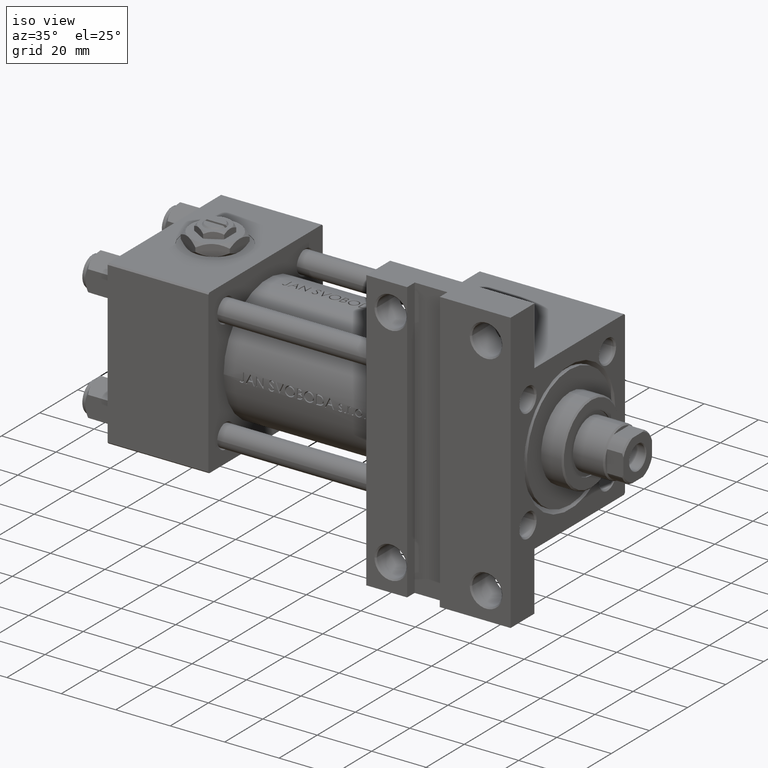
[diagram: clean part render]
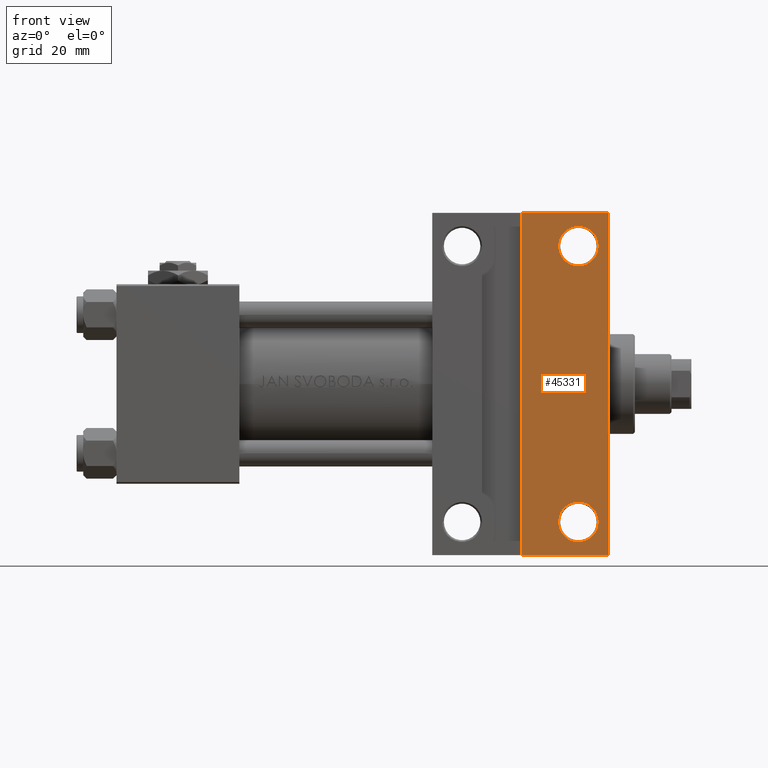
[diagram: tour spotlight — one face highlighted and labeled with its STEP entity id]
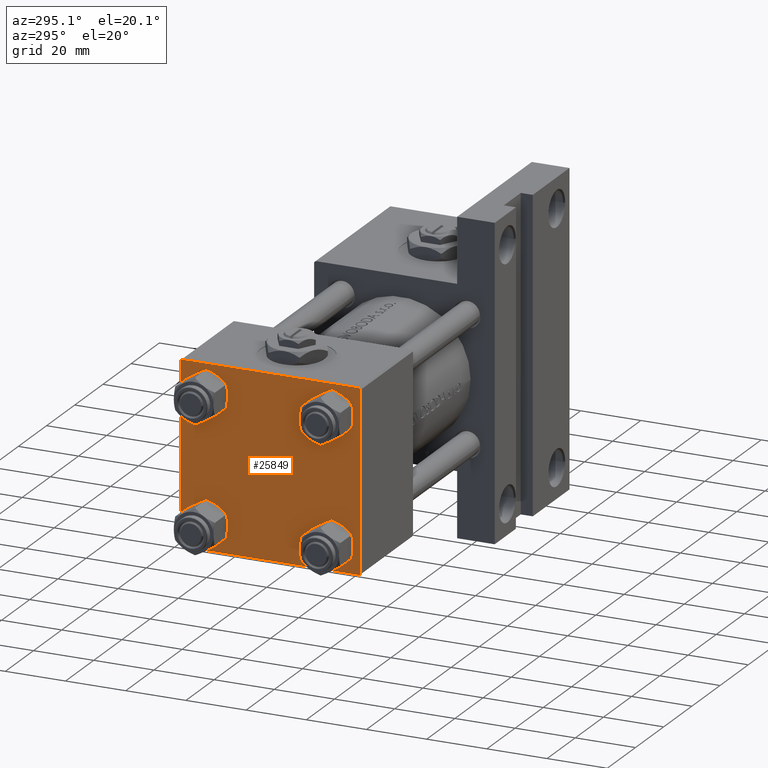
[diagram: tour spotlight — one face highlighted and labeled with its STEP entity id]
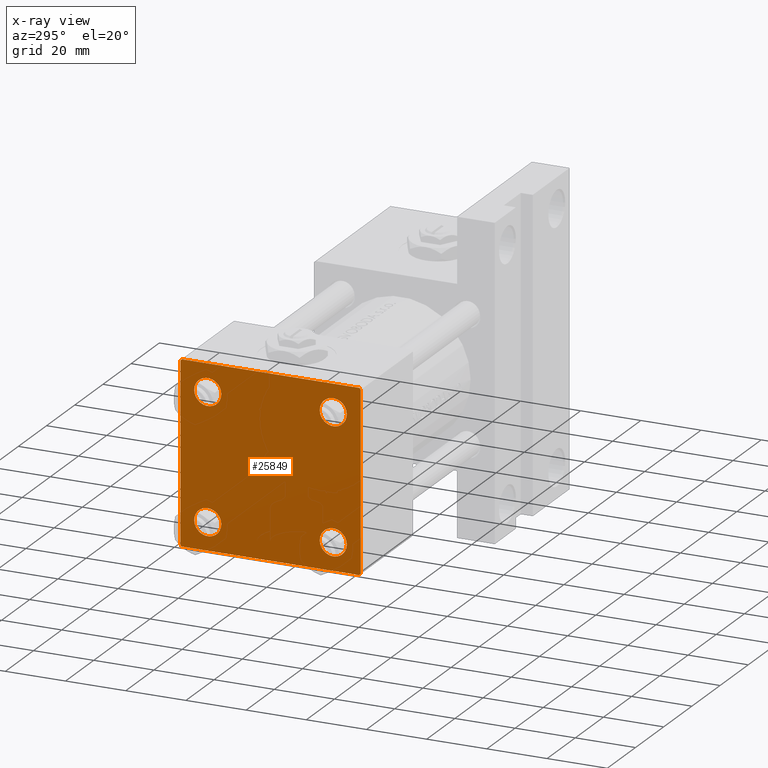
[diagram: x-ray of the same camera — body ghosted, this tour face saturated]
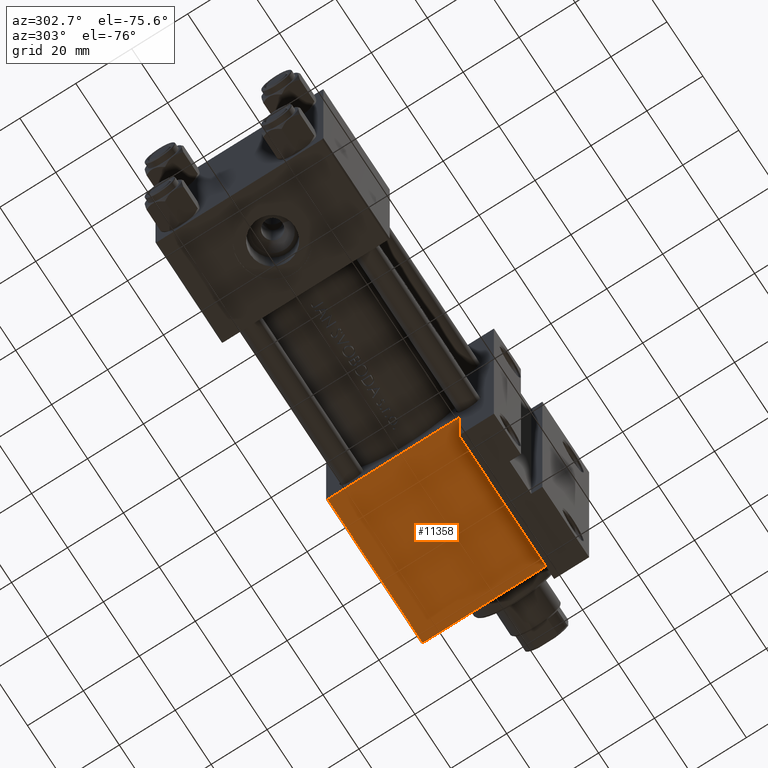
[diagram: tour spotlight — one face highlighted and labeled with its STEP entity id]
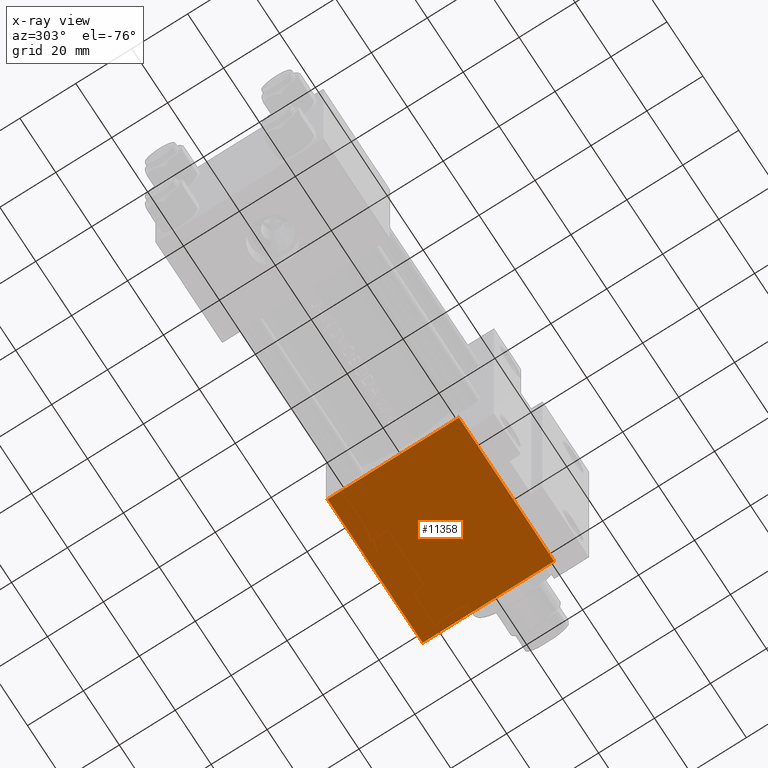
[diagram: x-ray of the same camera — body ghosted, this tour face saturated]
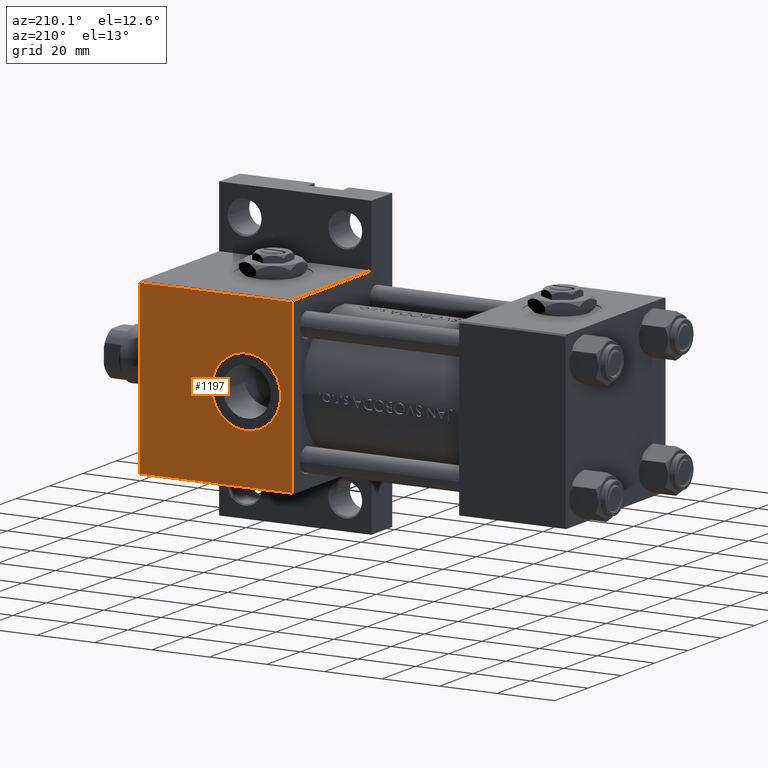
[diagram: tour spotlight — one face highlighted and labeled with its STEP entity id]
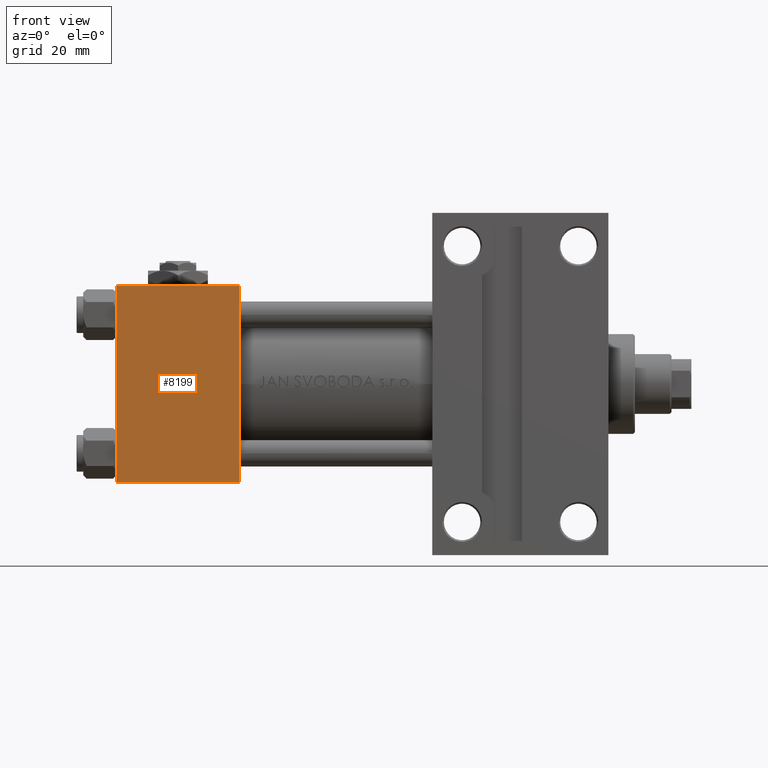
[diagram: tour spotlight — one face highlighted and labeled with its STEP entity id]
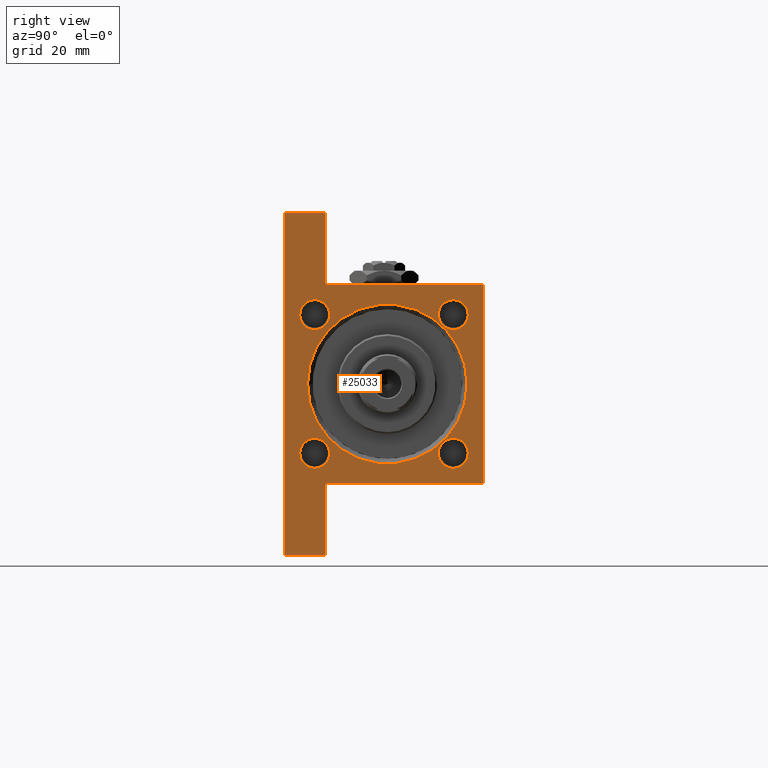
[diagram: tour spotlight — one face highlighted and labeled with its STEP entity id]
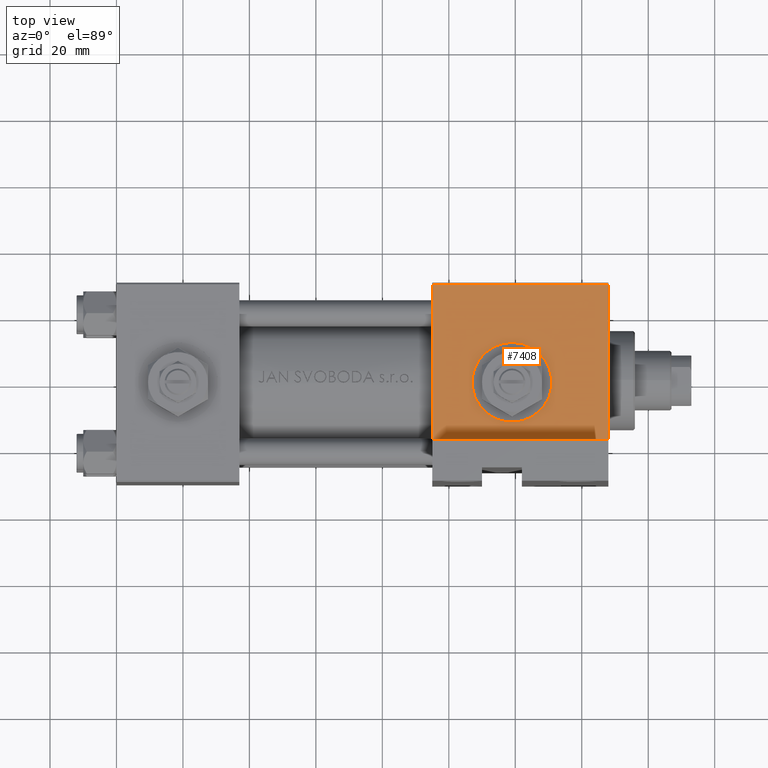
[diagram: tour spotlight — one face highlighted and labeled with its STEP entity id]
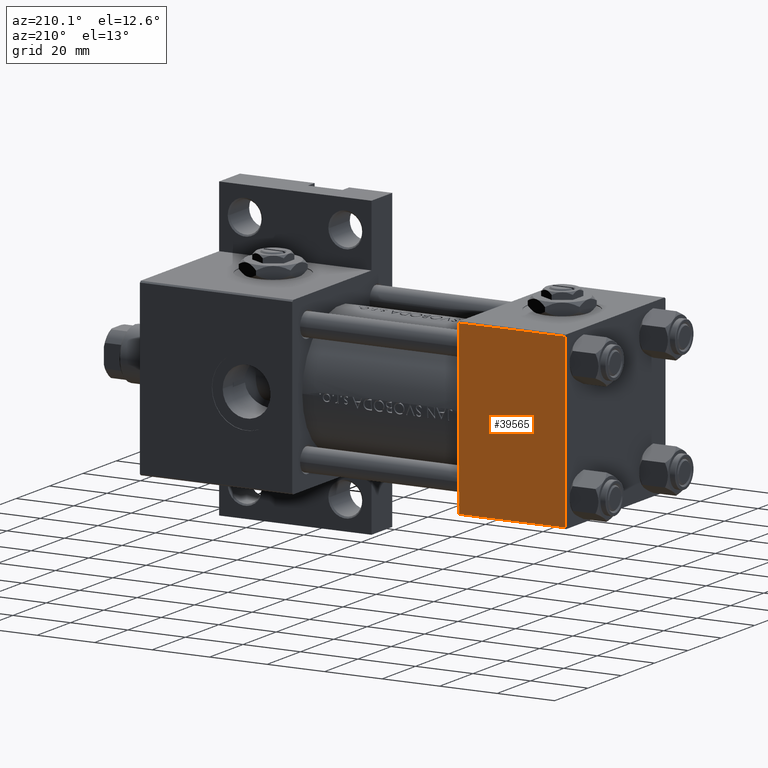
[diagram: tour spotlight — one face highlighted and labeled with its STEP entity id]
A machine part: a face-by-face anatomy tour. The part has 1215 B-rep faces; the first image is the clean iso view, then the 8 largest visible faces are spotlighted one at a time (largest first), each with its STEP entity span.

Face 1 — front view, entity #45331. In plain terms, the highlighted planar face has unit normal (0, -1, -0).
Definition (entity closure, byte-faithful):
#101 = EDGE_CURVE ( 'NONE', #16081, #48261, #44319, .T. ) ;
#175 = PLANE ( 'NONE',  #48929 ) ;
#1473 = CIRCLE ( 'NONE', #9636, 5.999499999999962974 ) ;
#1639 = EDGE_CURVE ( 'NONE', #15262, #25419, #1473, .T. ) ;
#2702 = DIRECTION ( 'NONE',  ( -0.000000000000000000, -1.156482317317871478E-16, 1.000000000000000000 ) ) ;
#4068 = CIRCLE ( 'NONE', #24543, 5.999499999999962974 ) ;
#6269 = LINE ( 'NONE', #18557, #32371 ) ;
#6478 = EDGE_LOOP ( 'NONE', ( #6997, #35443 ) ) ;
#6997 = ORIENTED_EDGE ( 'NONE', *, *, #44349, .T. ) ;
#8231 = ORIENTED_EDGE ( 'NONE', *, *, #101, .F. ) ;
#8592 = CARTESIAN_POINT ( 'NONE',  ( 133.0004999999999598, -41.50000000000000000, -30.00000000000000000 ) ) ;
#8620 = DIRECTION ( 'NONE',  ( -0.000000000000000000, -1.000000000000000000, -0.000000000000000000 ) ) ;
#8743 = ORIENTED_EDGE ( 'NONE', *, *, #32171, .T. ) ;
#9172 = DIRECTION ( 'NONE',  ( -0.000000000000000000, -1.156482317317871478E-16, 1.000000000000000000 ) ) ;
#9403 = DIRECTION ( 'NONE',  ( -0.000000000000000000, -1.156482317317871478E-16, 1.000000000000000000 ) ) ;
#9636 = AXIS2_PLACEMENT_3D ( 'NONE', #48196, #9172, #44348 ) ;
#10005 = CARTESIAN_POINT ( 'NONE',  ( 121.9999999999999858, -51.49999999999999289, -29.99999999999999645 ) ) ;
#10327 = AXIS2_PLACEMENT_3D ( 'NONE', #21924, #2702, #26545 ) ;
#10756 = DIRECTION ( 'NONE',  ( 0.000000000000000000, 1.000000000000000000, 0.000000000000000000 ) ) ;
#11626 = CIRCLE ( 'NONE', #35403, 5.999499999999990507 ) ;
#11944 = FACE_BOUND ( 'NONE', #32348, .T. ) ;
#12646 = CARTESIAN_POINT ( 'NONE',  ( 144.9994999999999550, -41.50000000000000000, -30.00000000000000000 ) ) ;
#14800 = FACE_BOUND ( 'NONE', #6478, .T. ) ;
#15262 = VERTEX_POINT ( 'NONE', #41728 ) ;
#15289 = EDGE_CURVE ( 'NONE', #36718, #37870, #11626, .T. ) ;
#16081 = VERTEX_POINT ( 'NONE', #26310 ) ;
#16890 = CARTESIAN_POINT ( 'NONE',  ( 95.00000000000000000, 51.50000000000000711, -29.99999999999999645 ) ) ;
#17339 = DIRECTION ( 'NONE',  ( 0.000000000000000000, 1.000000000000000000, 0.000000000000000000 ) ) ;
#18351 = VECTOR ( 'NONE', #45992, 1000.000000000000000 ) ;
#18533 = CIRCLE ( 'NONE', #10327, 5.999499999999990507 ) ;
#18557 = CARTESIAN_POINT ( 'NONE',  ( 148.0000000000000000, 30.00000000000000000, -29.99999999999999289 ) ) ;
#19464 = VERTEX_POINT ( 'NONE', #42760 ) ;
#21356 = ORIENTED_EDGE ( 'NONE', *, *, #1639, .T. ) ;
#21694 = EDGE_CURVE ( 'NONE', #19464, #50111, #6269, .T. ) ;
#21924 = CARTESIAN_POINT ( 'NONE',  ( 138.9999999999999432, -41.50000000000000000, -30.00000000000000000 ) ) ;
#24543 = AXIS2_PLACEMENT_3D ( 'NONE', #30268, #26414, #10756 ) ;
#24806 = EDGE_CURVE ( 'NONE', #25419, #15262, #4068, .T. ) ;
#24932 = ORIENTED_EDGE ( 'NONE', *, *, #38341, .T. ) ;
#25419 = VERTEX_POINT ( 'NONE', #42477 ) ;
#25441 = CARTESIAN_POINT ( 'NONE',  ( 94.99999999999998579, -51.50000000000000711, -29.99999999999999645 ) ) ;
#25694 = LINE ( 'NONE', #25441, #18351 ) ;
#26310 = CARTESIAN_POINT ( 'NONE',  ( 121.9999999999999858, 51.50000000000000711, -29.99999999999999645 ) ) ;
#26414 = DIRECTION ( 'NONE',  ( -0.000000000000000000, -1.156482317317871478E-16, 1.000000000000000000 ) ) ;
#26545 = DIRECTION ( 'NONE',  ( 0.000000000000000000, 1.000000000000000000, 0.000000000000000000 ) ) ;
#27366 = FACE_OUTER_BOUND ( 'NONE', #31328, .T. ) ;
#29911 = CARTESIAN_POINT ( 'NONE',  ( 138.9999999999999432, -41.50000000000000000, -30.00000000000000000 ) ) ;
#30268 = CARTESIAN_POINT ( 'NONE',  ( 138.9999999999999432, 41.50000000000000000, -29.99999999999999289 ) ) ;
#30456 = CARTESIAN_POINT ( 'NONE',  ( 148.0000000000000000, 30.00000000000000000, -29.99999999999999289 ) ) ;
#30637 = ORIENTED_EDGE ( 'NONE', *, *, #21694, .T. ) ;
#31328 = EDGE_LOOP ( 'NONE', ( #8231, #8743, #30637, #24932 ) ) ;
#32171 = EDGE_CURVE ( 'NONE', #16081, #19464, #36409, .T. ) ;
#32348 = EDGE_LOOP ( 'NONE', ( #48879, #21356 ) ) ;
#32371 = VECTOR ( 'NONE', #41933, 1000.000000000000000 ) ;
#35403 = AXIS2_PLACEMENT_3D ( 'NONE', #29911, #9403, #17339 ) ;
#35443 = ORIENTED_EDGE ( 'NONE', *, *, #15289, .T. ) ;
#36409 = LINE ( 'NONE', #16890, #47792 ) ;
#36718 = VERTEX_POINT ( 'NONE', #12646 ) ;
#37560 = VECTOR ( 'NONE', #8620, 1000.000000000000000 ) ;
#37870 = VERTEX_POINT ( 'NONE', #8592 ) ;
#38341 = EDGE_CURVE ( 'NONE', #50111, #48261, #25694, .T. ) ;
#41728 = CARTESIAN_POINT ( 'NONE',  ( 144.9994999999999266, 41.50000000000000000, -29.99999999999999289 ) ) ;
#41933 = DIRECTION ( 'NONE',  ( 0.000000000000000000, -1.000000000000000000, -1.156482317317871478E-16 ) ) ;
#42282 = DIRECTION ( 'NONE',  ( 0.000000000000000000, 1.156482317317871478E-16, -1.000000000000000000 ) ) ;
#42477 = CARTESIAN_POINT ( 'NONE',  ( 133.0004999999999882, 41.50000000000000000, -29.99999999999999289 ) ) ;
#42760 = CARTESIAN_POINT ( 'NONE',  ( 148.0000000000000000, 51.49999999999999289, -29.99999999999999645 ) ) ;
#44319 = LINE ( 'NONE', #44822, #37560 ) ;
#44348 = DIRECTION ( 'NONE',  ( 0.000000000000000000, 1.000000000000000000, 0.000000000000000000 ) ) ;
#44349 = EDGE_CURVE ( 'NONE', #37870, #36718, #18533, .T. ) ;
#44480 = CARTESIAN_POINT ( 'NONE',  ( 148.0000000000000000, -51.50000000000000711, -29.99999999999999645 ) ) ;
#44822 = CARTESIAN_POINT ( 'NONE',  ( 121.9999999999999858, -51.49999999999999289, -29.99999999999999645 ) ) ;
#45331 = ADVANCED_FACE ( 'NONE', ( #27366, #14800, #11944 ), #175, .T. ) ;
#45992 = DIRECTION ( 'NONE',  ( -1.000000000000000000, -0.000000000000000000, -0.000000000000000000 ) ) ;
#47144 = DIRECTION ( 'NONE',  ( 0.000000000000000000, 1.000000000000000000, 1.156482317317871478E-16 ) ) ;
#47210 = DIRECTION ( 'NONE',  ( 1.000000000000000000, -2.618450529776313247E-16, 0.000000000000000000 ) ) ;
#47792 = VECTOR ( 'NONE', #47210, 1000.000000000000000 ) ;
#48196 = CARTESIAN_POINT ( 'NONE',  ( 138.9999999999999432, 41.50000000000000000, -29.99999999999999289 ) ) ;
#48261 = VERTEX_POINT ( 'NONE', #10005 ) ;
#48879 = ORIENTED_EDGE ( 'NONE', *, *, #24806, .T. ) ;
#48929 = AXIS2_PLACEMENT_3D ( 'NONE', #30456, #42282, #47144 ) ;
#50111 = VERTEX_POINT ( 'NONE', #44480 ) ;

Face 2 — auxiliary view, entity #25849. An x-ray twin of the same camera follows (body ghosted, this face saturated) — the face is partly hidden behind the body. In plain terms, the highlighted planar face has unit normal (-1, 0, -0).
Definition (entity closure, byte-faithful):
#171 = ORIENTED_EDGE ( 'NONE', *, *, #20439, .T. ) ;
#348 = DIRECTION ( 'NONE',  ( 1.000000000000000000, -0.000000000000000000, 0.000000000000000000 ) ) ;
#453 = DIRECTION ( 'NONE',  ( 0.000000000000000000, 0.000000000000000000, -1.000000000000000000 ) ) ;
#741 = CARTESIAN_POINT ( 'NONE',  ( -0.000000000000000000, -29.74999999999999645, 29.74999999999999645 ) ) ;
#2144 = VERTEX_POINT ( 'NONE', #50288 ) ;
#2281 = ORIENTED_EDGE ( 'NONE', *, *, #29519, .T. ) ;
#2330 = AXIS2_PLACEMENT_3D ( 'NONE', #33607, #3320, #34611 ) ;
#2476 = CIRCLE ( 'NONE', #44291, 4.500000000000017764 ) ;
#2917 = CARTESIAN_POINT ( 'NONE',  ( 0.000000000000000000, 29.49999999999999289, 30.00000000000000000 ) ) ;
#2926 = EDGE_CURVE ( 'NONE', #3452, #41351, #47408, .T. ) ;
#3054 = ORIENTED_EDGE ( 'NONE', *, *, #22349, .T. ) ;
#3320 = DIRECTION ( 'NONE',  ( 1.000000000000000000, -0.000000000000000000, 0.000000000000000000 ) ) ;
#3452 = VERTEX_POINT ( 'NONE', #24000 ) ;
#4274 = VECTOR ( 'NONE', #453, 1000.000000000000000 ) ;
#4472 = AXIS2_PLACEMENT_3D ( 'NONE', #19847, #35529, #35266 ) ;
#4554 = CARTESIAN_POINT ( 'NONE',  ( 0.000000000000000000, -20.84999999999999076, -25.35000000000002274 ) ) ;
#4842 = LINE ( 'NONE', #741, #24015 ) ;
#5254 = EDGE_CURVE ( 'NONE', #17469, #18276, #17131, .T. ) ;
#5716 = CARTESIAN_POINT ( 'NONE',  ( 0.000000000000000000, -20.84999999999999076, -20.85000000000000497 ) ) ;
#5740 = DIRECTION ( 'NONE',  ( 0.000000000000000000, 0.000000000000000000, 1.000000000000000000 ) ) ;
#6066 = EDGE_CURVE ( 'NONE', #46239, #42583, #24536, .T. ) ;
#6581 = EDGE_CURVE ( 'NONE', #13862, #44250, #24659, .T. ) ;
#6748 = CARTESIAN_POINT ( 'NONE',  ( 0.000000000000000000, 20.84999999999999787, -20.85000000000000142 ) ) ;
#7238 = FACE_BOUND ( 'NONE', #38958, .T. ) ;
#7548 = VERTEX_POINT ( 'NONE', #14636 ) ;
#7956 = CARTESIAN_POINT ( 'NONE',  ( 0.000000000000000000, -29.75000000000001066, -29.75000000000001066 ) ) ;
#8375 = VECTOR ( 'NONE', #25519, 1000.000000000000000 ) ;
#9871 = LINE ( 'NONE', #21409, #8375 ) ;
#9904 = DIRECTION ( 'NONE',  ( 0.000000000000000000, 0.000000000000000000, 1.000000000000000000 ) ) ;
#10306 = DIRECTION ( 'NONE',  ( 0.000000000000000000, -1.000000000000000000, -1.156482317317871725E-16 ) ) ;
#10765 = DIRECTION ( 'NONE',  ( 1.000000000000000000, -0.000000000000000000, 0.000000000000000000 ) ) ;
#10791 = AXIS2_PLACEMENT_3D ( 'NONE', #5716, #21338, #37774 ) ;
#11001 = EDGE_CURVE ( 'NONE', #18276, #17469, #31261, .T. ) ;
#11565 = LINE ( 'NONE', #15926, #40425 ) ;
#11611 = CARTESIAN_POINT ( 'NONE',  ( 0.000000000000000000, 20.84999999999999787, -16.34999999999998366 ) ) ;
#11636 = ORIENTED_EDGE ( 'NONE', *, *, #36522, .T. ) ;
#13862 = VERTEX_POINT ( 'NONE', #2917 ) ;
#14435 = DIRECTION ( 'NONE',  ( 1.000000000000000000, -0.000000000000000000, 0.000000000000000000 ) ) ;
#14492 = EDGE_CURVE ( 'NONE', #44109, #2144, #50166, .T. ) ;
#14636 = CARTESIAN_POINT ( 'NONE',  ( 0.000000000000000000, -29.50000000000000000, -30.00000000000000711 ) ) ;
#15329 = DIRECTION ( 'NONE',  ( -0.000000000000000000, -0.7071067811865574537, -0.7071067811865376918 ) ) ;
#15926 = CARTESIAN_POINT ( 'NONE',  ( 0.000000000000000000, 29.74999999999999645, 29.74999999999999645 ) ) ;
#15974 = DIRECTION ( 'NONE',  ( 0.000000000000000000, 0.000000000000000000, 1.000000000000000000 ) ) ;
#15989 = EDGE_CURVE ( 'NONE', #22869, #21774, #24540, .T. ) ;
#16110 = VECTOR ( 'NONE', #15329, 999.9999999999998863 ) ;
#16366 = FACE_OUTER_BOUND ( 'NONE', #44709, .T. ) ;
#16838 = ORIENTED_EDGE ( 'NONE', *, *, #15989, .F. ) ;
#17128 = DIRECTION ( 'NONE',  ( -0.000000000000000000, 0.000000000000000000, 1.000000000000000000 ) ) ;
#17131 = CIRCLE ( 'NONE', #43379, 4.500000000000017764 ) ;
#17297 = CARTESIAN_POINT ( 'NONE',  ( 0.000000000000000000, 29.49999999999997868, -30.00000000000000000 ) ) ;
#17469 = VERTEX_POINT ( 'NONE', #36291 ) ;
#18276 = VERTEX_POINT ( 'NONE', #4554 ) ;
#18398 = ORIENTED_EDGE ( 'NONE', *, *, #2926, .T. ) ;
#18615 = VERTEX_POINT ( 'NONE', #17297 ) ;
#18857 = VECTOR ( 'NONE', #36213, 1000.000000000000000 ) ;
#19711 = DIRECTION ( 'NONE',  ( 1.000000000000000000, -0.000000000000000000, 0.000000000000000000 ) ) ;
#19808 = CARTESIAN_POINT ( 'NONE',  ( 0.000000000000000000, 20.84999999999999787, 20.85000000000000142 ) ) ;
#19847 = CARTESIAN_POINT ( 'NONE',  ( 0.000000000000000000, -20.84999999999999076, 20.85000000000000497 ) ) ;
#19912 = CARTESIAN_POINT ( 'NONE',  ( 0.000000000000000000, -30.00000000000000000, 29.99999999999999289 ) ) ;
#20212 = FACE_BOUND ( 'NONE', #41002, .T. ) ;
#20230 = ORIENTED_EDGE ( 'NONE', *, *, #6066, .T. ) ;
#20439 = EDGE_CURVE ( 'NONE', #2144, #44109, #27382, .T. ) ;
#21338 = DIRECTION ( 'NONE',  ( 1.000000000000000000, -0.000000000000000000, 0.000000000000000000 ) ) ;
#21409 = CARTESIAN_POINT ( 'NONE',  ( 0.000000000000000000, 29.99999999999999289, 30.00000000000000000 ) ) ;
#21444 = VERTEX_POINT ( 'NONE', #22770 ) ;
#21553 = DIRECTION ( 'NONE',  ( 0.000000000000000000, 0.000000000000000000, 1.000000000000000000 ) ) ;
#21774 = VERTEX_POINT ( 'NONE', #31609 ) ;
#22349 = EDGE_CURVE ( 'NONE', #41213, #18615, #42559, .T. ) ;
#22416 = CARTESIAN_POINT ( 'NONE',  ( 0.000000000000000000, 29.99999999999999289, -29.50000000000000000 ) ) ;
#22770 = CARTESIAN_POINT ( 'NONE',  ( 0.000000000000000000, 29.99999999999999289, 29.50000000000000000 ) ) ;
#22869 = VERTEX_POINT ( 'NONE', #27707 ) ;
#23109 = CARTESIAN_POINT ( 'NONE',  ( 0.000000000000000000, 20.84999999999999787, 16.34999999999998366 ) ) ;
#23356 = ORIENTED_EDGE ( 'NONE', *, *, #36078, .T. ) ;
#23828 = DIRECTION ( 'NONE',  ( 0.000000000000000000, 0.000000000000000000, 1.000000000000000000 ) ) ;
#24000 = CARTESIAN_POINT ( 'NONE',  ( 0.000000000000000000, 20.84999999999999787, -25.35000000000001918 ) ) ;
#24015 = VECTOR ( 'NONE', #32787, 1000.000000000000114 ) ;
#24068 = FACE_BOUND ( 'NONE', #36412, .T. ) ;
#24536 = CIRCLE ( 'NONE', #49149, 4.500000000000017764 ) ;
#24540 = LINE ( 'NONE', #19912, #4274 ) ;
#24659 = LINE ( 'NONE', #43425, #18857 ) ;
#25519 = DIRECTION ( 'NONE',  ( 0.000000000000000000, 0.000000000000000000, -1.000000000000000000 ) ) ;
#25665 = ORIENTED_EDGE ( 'NONE', *, *, #5254, .T. ) ;
#25680 = EDGE_CURVE ( 'NONE', #41351, #3452, #2476, .T. ) ;
#25849 = ADVANCED_FACE ( 'NONE', ( #7238, #34683, #24068, #20212, #16366 ), #33296, .T. ) ;
#25997 = CIRCLE ( 'NONE', #27628, 4.500000000000017764 ) ;
#27382 = CIRCLE ( 'NONE', #4472, 4.500000000000017764 ) ;
#27628 = AXIS2_PLACEMENT_3D ( 'NONE', #19808, #348, #15974 ) ;
#27707 = CARTESIAN_POINT ( 'NONE',  ( 0.000000000000000000, -30.00000000000000000, 29.49999999999999289 ) ) ;
#27957 = CARTESIAN_POINT ( 'NONE',  ( 0.000000000000000000, 20.84999999999999787, 25.35000000000001918 ) ) ;
#29519 = EDGE_CURVE ( 'NONE', #7548, #21774, #43124, .T. ) ;
#30953 = EDGE_CURVE ( 'NONE', #21444, #41213, #9871, .T. ) ;
#31261 = CIRCLE ( 'NONE', #10791, 4.500000000000017764 ) ;
#31551 = DIRECTION ( 'NONE',  ( 0.000000000000000000, -0.7071067811865474617, 0.7071067811865474617 ) ) ;
#31609 = CARTESIAN_POINT ( 'NONE',  ( 0.000000000000000000, -30.00000000000000000, -29.50000000000001776 ) ) ;
#31769 = CARTESIAN_POINT ( 'NONE',  ( 0.000000000000000000, -29.49999999999998579, 29.99999999999999289 ) ) ;
#31895 = ORIENTED_EDGE ( 'NONE', *, *, #6581, .F. ) ;
#32049 = ORIENTED_EDGE ( 'NONE', *, *, #49996, .T. ) ;
#32113 = AXIS2_PLACEMENT_3D ( 'NONE', #37121, #48942, #9904 ) ;
#32787 = DIRECTION ( 'NONE',  ( -0.000000000000000000, 0.7071067811865474617, 0.7071067811865474617 ) ) ;
#32806 = ORIENTED_EDGE ( 'NONE', *, *, #25680, .T. ) ;
#33296 = PLANE ( 'NONE',  #47530 ) ;
#33607 = CARTESIAN_POINT ( 'NONE',  ( 0.000000000000000000, 20.84999999999999787, -20.85000000000000142 ) ) ;
#33664 = LINE ( 'NONE', #45496, #45308 ) ;
#34303 = ORIENTED_EDGE ( 'NONE', *, *, #35069, .T. ) ;
#34611 = DIRECTION ( 'NONE',  ( 0.000000000000000000, 0.000000000000000000, 1.000000000000000000 ) ) ;
#34683 = FACE_BOUND ( 'NONE', #42774, .T. ) ;
#35069 = EDGE_CURVE ( 'NONE', #18615, #7548, #33664, .T. ) ;
#35266 = DIRECTION ( 'NONE',  ( 0.000000000000000000, 0.000000000000000000, 1.000000000000000000 ) ) ;
#35529 = DIRECTION ( 'NONE',  ( 1.000000000000000000, -0.000000000000000000, 0.000000000000000000 ) ) ;
#36078 = EDGE_CURVE ( 'NONE', #13862, #21444, #11565, .T. ) ;
#36213 = DIRECTION ( 'NONE',  ( 0.000000000000000000, -1.000000000000000000, -1.156482317317871725E-16 ) ) ;
#36291 = CARTESIAN_POINT ( 'NONE',  ( 0.000000000000000000, -20.84999999999999076, -16.34999999999998721 ) ) ;
#36412 = EDGE_LOOP ( 'NONE', ( #32806, #18398 ) ) ;
#36522 = EDGE_CURVE ( 'NONE', #22869, #44250, #4842, .T. ) ;
#36631 = ORIENTED_EDGE ( 'NONE', *, *, #14492, .T. ) ;
#36899 = CARTESIAN_POINT ( 'NONE',  ( 0.000000000000000000, 0.000000000000000000, 0.000000000000000000 ) ) ;
#37121 = CARTESIAN_POINT ( 'NONE',  ( 0.000000000000000000, -20.84999999999999076, 20.85000000000000497 ) ) ;
#37774 = DIRECTION ( 'NONE',  ( 0.000000000000000000, 0.000000000000000000, 1.000000000000000000 ) ) ;
#38958 = EDGE_LOOP ( 'NONE', ( #36631, #171 ) ) ;
#39804 = ORIENTED_EDGE ( 'NONE', *, *, #11001, .T. ) ;
#40425 = VECTOR ( 'NONE', #47766, 1000.000000000000114 ) ;
#41002 = EDGE_LOOP ( 'NONE', ( #20230, #32049 ) ) ;
#41213 = VERTEX_POINT ( 'NONE', #22416 ) ;
#41351 = VERTEX_POINT ( 'NONE', #11611 ) ;
#42559 = LINE ( 'NONE', #50513, #16110 ) ;
#42583 = VERTEX_POINT ( 'NONE', #23109 ) ;
#42774 = EDGE_LOOP ( 'NONE', ( #25665, #39804 ) ) ;
#43124 = LINE ( 'NONE', #7956, #47715 ) ;
#43379 = AXIS2_PLACEMENT_3D ( 'NONE', #45196, #10765, #21553 ) ;
#43425 = CARTESIAN_POINT ( 'NONE',  ( 0.000000000000000000, 29.99999999999999289, 30.00000000000000000 ) ) ;
#44109 = VERTEX_POINT ( 'NONE', #46442 ) ;
#44250 = VERTEX_POINT ( 'NONE', #31769 ) ;
#44291 = AXIS2_PLACEMENT_3D ( 'NONE', #6748, #14435, #5740 ) ;
#44709 = EDGE_LOOP ( 'NONE', ( #49301, #3054, #34303, #2281, #16838, #11636, #31895, #23356 ) ) ;
#45196 = CARTESIAN_POINT ( 'NONE',  ( 0.000000000000000000, -20.84999999999999076, -20.85000000000000497 ) ) ;
#45308 = VECTOR ( 'NONE', #10306, 1000.000000000000000 ) ;
#45496 = CARTESIAN_POINT ( 'NONE',  ( 0.000000000000000000, 29.99999999999999289, -30.00000000000000000 ) ) ;
#46239 = VERTEX_POINT ( 'NONE', #27957 ) ;
#46442 = CARTESIAN_POINT ( 'NONE',  ( 0.000000000000000000, -20.84999999999999076, 25.35000000000002274 ) ) ;
#46709 = CARTESIAN_POINT ( 'NONE',  ( 0.000000000000000000, 20.84999999999999787, 20.85000000000000142 ) ) ;
#47408 = CIRCLE ( 'NONE', #2330, 4.500000000000017764 ) ;
#47530 = AXIS2_PLACEMENT_3D ( 'NONE', #36899, #48980, #17128 ) ;
#47715 = VECTOR ( 'NONE', #31551, 1000.000000000000114 ) ;
#47766 = DIRECTION ( 'NONE',  ( 0.000000000000000000, 0.7071067811865474617, -0.7071067811865474617 ) ) ;
#48942 = DIRECTION ( 'NONE',  ( 1.000000000000000000, -0.000000000000000000, 0.000000000000000000 ) ) ;
#48980 = DIRECTION ( 'NONE',  ( -1.000000000000000000, 0.000000000000000000, -0.000000000000000000 ) ) ;
#49149 = AXIS2_PLACEMENT_3D ( 'NONE', #46709, #19711, #23828 ) ;
#49301 = ORIENTED_EDGE ( 'NONE', *, *, #30953, .T. ) ;
#49996 = EDGE_CURVE ( 'NONE', #42583, #46239, #25997, .T. ) ;
#50166 = CIRCLE ( 'NONE', #32113, 4.500000000000017764 ) ;
#50288 = CARTESIAN_POINT ( 'NONE',  ( 0.000000000000000000, -20.84999999999999076, 16.34999999999998721 ) ) ;
#50513 = CARTESIAN_POINT ( 'NONE',  ( 0.000000000000000000, 29.74999999999957723, -29.75000000000040501 ) ) ;

Face 3 — auxiliary view, entity #11358. An x-ray twin of the same camera follows (body ghosted, this face saturated) — the face is partly hidden behind the body. In plain terms, the highlighted planar face has unit normal (0, 0, -1).
Definition (entity closure, byte-faithful):
#477 = FACE_OUTER_BOUND ( 'NONE', #32353, .T. ) ;
#1079 = VECTOR ( 'NONE', #7256, 1000.000000000000000 ) ;
#1573 = LINE ( 'NONE', #16197, #11527 ) ;
#2389 = ORIENTED_EDGE ( 'NONE', *, *, #6383, .T. ) ;
#3737 = VECTOR ( 'NONE', #27839, 1000.000000000000000 ) ;
#4315 = DIRECTION ( 'NONE',  ( 0.000000000000000000, -0.000000000000000000, 1.000000000000000000 ) ) ;
#6383 = EDGE_CURVE ( 'NONE', #27612, #42172, #39310, .T. ) ;
#6666 = VERTEX_POINT ( 'NONE', #34896 ) ;
#6689 = ORIENTED_EDGE ( 'NONE', *, *, #27504, .F. ) ;
#7256 = DIRECTION ( 'NONE',  ( -1.000000000000000000, 1.309225264888156623E-16, -0.000000000000000000 ) ) ;
#7958 = ORIENTED_EDGE ( 'NONE', *, *, #43305, .T. ) ;
#9989 = AXIS2_PLACEMENT_3D ( 'NONE', #26655, #39464, #4315 ) ;
#11358 = ADVANCED_FACE ( 'NONE', ( #477 ), #15348, .T. ) ;
#11527 = VECTOR ( 'NONE', #24657, 1000.000000000000000 ) ;
#15119 = CARTESIAN_POINT ( 'NONE',  ( 95.00000000000000000, 30.00000000000000000, -17.49999999999998224 ) ) ;
#15348 = PLANE ( 'NONE',  #9989 ) ;
#16197 = CARTESIAN_POINT ( 'NONE',  ( 95.00000000000000000, 30.00000000000000000, 30.00000000000000000 ) ) ;
#17731 = ORIENTED_EDGE ( 'NONE', *, *, #33263, .T. ) ;
#24657 = DIRECTION ( 'NONE',  ( 0.000000000000000000, 0.000000000000000000, -1.000000000000000000 ) ) ;
#26504 = CARTESIAN_POINT ( 'NONE',  ( 148.0000000000000000, 30.00000000000000000, 30.00000000000000000 ) ) ;
#26655 = CARTESIAN_POINT ( 'NONE',  ( 148.0000000000000000, 30.00000000000000000, 30.00000000000000000 ) ) ;
#27504 = EDGE_CURVE ( 'NONE', #6666, #34389, #1573, .T. ) ;
#27612 = VERTEX_POINT ( 'NONE', #32111 ) ;
#27839 = DIRECTION ( 'NONE',  ( 1.000000000000000000, 0.000000000000000000, 0.000000000000000000 ) ) ;
#30882 = CARTESIAN_POINT ( 'NONE',  ( 148.0000000000000000, 29.99999999999999289, -17.49999999999999645 ) ) ;
#32111 = CARTESIAN_POINT ( 'NONE',  ( 148.0000000000000000, 30.00000000000000000, 29.50000000000000000 ) ) ;
#32353 = EDGE_LOOP ( 'NONE', ( #6689, #7958, #2389, #17731 ) ) ;
#33263 = EDGE_CURVE ( 'NONE', #42172, #34389, #44265, .T. ) ;
#34389 = VERTEX_POINT ( 'NONE', #15119 ) ;
#34896 = CARTESIAN_POINT ( 'NONE',  ( 95.00000000000000000, 30.00000000000000000, 29.50000000000000000 ) ) ;
#35197 = VECTOR ( 'NONE', #50126, 1000.000000000000000 ) ;
#39310 = LINE ( 'NONE', #26504, #35197 ) ;
#39464 = DIRECTION ( 'NONE',  ( -0.000000000000000000, 1.000000000000000000, 0.000000000000000000 ) ) ;
#42172 = VERTEX_POINT ( 'NONE', #30882 ) ;
#42427 = CARTESIAN_POINT ( 'NONE',  ( 95.00000000000000000, 30.00000000000000000, -17.49999999999999645 ) ) ;
#43305 = EDGE_CURVE ( 'NONE', #6666, #27612, #46622, .T. ) ;
#44265 = LINE ( 'NONE', #42427, #1079 ) ;
#46622 = LINE ( 'NONE', #47624, #3737 ) ;
#47624 = CARTESIAN_POINT ( 'NONE',  ( 148.0000000000000000, 30.00000000000000000, 29.50000000000000000 ) ) ;
#50126 = DIRECTION ( 'NONE',  ( 0.000000000000000000, 0.000000000000000000, -1.000000000000000000 ) ) ;

Face 4 — auxiliary view, entity #1197. In plain terms, the highlighted planar face has unit normal (0, -1, -0).
Definition (entity closure, byte-faithful):
#1197 = ADVANCED_FACE ( 'NONE', ( #25692, #22088 ), #10294, .F. ) ;
#2716 = DIRECTION ( 'NONE',  ( 0.000000000000000000, 0.000000000000000000, 1.000000000000000000 ) ) ;
#4453 = CARTESIAN_POINT ( 'NONE',  ( 95.00000000000000000, -29.50000000000002487, 29.99999999999999289 ) ) ;
#4781 = EDGE_CURVE ( 'NONE', #38176, #32378, #26952, .T. ) ;
#5248 = CARTESIAN_POINT ( 'NONE',  ( 148.0000000000000000, -29.50000000000002487, 29.99999999999999289 ) ) ;
#5859 = EDGE_CURVE ( 'NONE', #32378, #38176, #34393, .T. ) ;
#6238 = VERTEX_POINT ( 'NONE', #5248 ) ;
#7917 = CARTESIAN_POINT ( 'NONE',  ( 148.0000000000000000, 30.00000000000000000, 30.00000000000000000 ) ) ;
#8088 = CARTESIAN_POINT ( 'NONE',  ( 148.0000000000000000, 29.50000000000000000, 30.00000000000000000 ) ) ;
#9152 = DIRECTION ( 'NONE',  ( -1.000000000000000000, 0.000000000000000000, 0.000000000000000000 ) ) ;
#9412 = LINE ( 'NONE', #39956, #34905 ) ;
#10147 = DIRECTION ( 'NONE',  ( 1.000000000000000000, 0.000000000000000000, 0.000000000000000000 ) ) ;
#10255 = ORIENTED_EDGE ( 'NONE', *, *, #20313, .T. ) ;
#10294 = PLANE ( 'NONE',  #15333 ) ;
#10579 = AXIS2_PLACEMENT_3D ( 'NONE', #40127, #48098, #12900 ) ;
#11012 = LINE ( 'NONE', #7917, #33326 ) ;
#12039 = ORIENTED_EDGE ( 'NONE', *, *, #46962, .T. ) ;
#12900 = DIRECTION ( 'NONE',  ( 1.000000000000000000, 0.000000000000000000, 0.000000000000000000 ) ) ;
#14399 = DIRECTION ( 'NONE',  ( 0.000000000000000000, 1.000000000000000000, 1.156482317317871478E-16 ) ) ;
#15333 = AXIS2_PLACEMENT_3D ( 'NONE', #42135, #41875, #14399 ) ;
#16760 = VECTOR ( 'NONE', #36348, 1000.000000000000000 ) ;
#17585 = EDGE_LOOP ( 'NONE', ( #20331, #40169 ) ) ;
#17600 = LINE ( 'NONE', #20680, #16760 ) ;
#19163 = CARTESIAN_POINT ( 'NONE',  ( 123.0000000000000000, -3.469446951953613794E-15, 29.99999999999999645 ) ) ;
#20313 = EDGE_CURVE ( 'NONE', #45450, #47023, #17600, .T. ) ;
#20331 = ORIENTED_EDGE ( 'NONE', *, *, #5859, .F. ) ;
#20680 = CARTESIAN_POINT ( 'NONE',  ( 95.00000000000000000, 30.00000000000000000, 30.00000000000000000 ) ) ;
#22088 = FACE_OUTER_BOUND ( 'NONE', #27124, .T. ) ;
#25264 = ORIENTED_EDGE ( 'NONE', *, *, #48398, .F. ) ;
#25692 = FACE_BOUND ( 'NONE', #17585, .T. ) ;
#26952 = CIRCLE ( 'NONE', #10579, 11.99999999999999645 ) ;
#27124 = EDGE_LOOP ( 'NONE', ( #25264, #49392, #10255, #12039 ) ) ;
#29147 = CARTESIAN_POINT ( 'NONE',  ( 111.0000000000000000, -3.469446951953613794E-15, 29.99999999999999645 ) ) ;
#31115 = CARTESIAN_POINT ( 'NONE',  ( 99.00000000000000000, -1.999870792976792017E-15, 29.99999999999999645 ) ) ;
#31376 = LINE ( 'NONE', #43203, #40782 ) ;
#31937 = AXIS2_PLACEMENT_3D ( 'NONE', #29147, #2716, #10147 ) ;
#32378 = VERTEX_POINT ( 'NONE', #19163 ) ;
#33326 = VECTOR ( 'NONE', #38227, 1000.000000000000000 ) ;
#34393 = CIRCLE ( 'NONE', #31937, 11.99999999999999645 ) ;
#34905 = VECTOR ( 'NONE', #9152, 1000.000000000000000 ) ;
#35312 = CARTESIAN_POINT ( 'NONE',  ( 95.00000000000000000, 29.50000000000000000, 30.00000000000000000 ) ) ;
#35493 = DIRECTION ( 'NONE',  ( 1.000000000000000000, 0.000000000000000000, 0.000000000000000000 ) ) ;
#36348 = DIRECTION ( 'NONE',  ( 0.000000000000000000, -1.000000000000000000, -1.156482317317871478E-16 ) ) ;
#38176 = VERTEX_POINT ( 'NONE', #31115 ) ;
#38227 = DIRECTION ( 'NONE',  ( 0.000000000000000000, -1.000000000000000000, -1.156482317317871478E-16 ) ) ;
#38683 = VERTEX_POINT ( 'NONE', #8088 ) ;
#39956 = CARTESIAN_POINT ( 'NONE',  ( 95.00000000000000000, 29.50000000000000000, 30.00000000000000000 ) ) ;
#40127 = CARTESIAN_POINT ( 'NONE',  ( 111.0000000000000000, -3.469446951953613794E-15, 29.99999999999999645 ) ) ;
#40169 = ORIENTED_EDGE ( 'NONE', *, *, #4781, .F. ) ;
#40782 = VECTOR ( 'NONE', #35493, 1000.000000000000000 ) ;
#41875 = DIRECTION ( 'NONE',  ( 0.000000000000000000, 1.156482317317871478E-16, -1.000000000000000000 ) ) ;
#42135 = CARTESIAN_POINT ( 'NONE',  ( 148.0000000000000000, 30.00000000000000000, 30.00000000000000000 ) ) ;
#42762 = EDGE_CURVE ( 'NONE', #38683, #45450, #9412, .T. ) ;
#43203 = CARTESIAN_POINT ( 'NONE',  ( 148.0000000000000000, -29.50000000000002487, 29.99999999999999289 ) ) ;
#45450 = VERTEX_POINT ( 'NONE', #35312 ) ;
#46962 = EDGE_CURVE ( 'NONE', #47023, #6238, #31376, .T. ) ;
#47023 = VERTEX_POINT ( 'NONE', #4453 ) ;
#48098 = DIRECTION ( 'NONE',  ( 0.000000000000000000, 0.000000000000000000, 1.000000000000000000 ) ) ;
#48398 = EDGE_CURVE ( 'NONE', #38683, #6238, #11012, .T. ) ;
#49392 = ORIENTED_EDGE ( 'NONE', *, *, #42762, .T. ) ;

Face 5 — front view, entity #8199. In plain terms, the highlighted planar face has unit normal (0, -1, -0).
Definition (entity closure, byte-faithful):
#712 = LINE ( 'NONE', #44604, #18971 ) ;
#3779 = VERTEX_POINT ( 'NONE', #3946 ) ;
#3946 = CARTESIAN_POINT ( 'NONE',  ( 37.00000000000000000, 29.49999999999997868, -30.00000000000000000 ) ) ;
#5978 = ORIENTED_EDGE ( 'NONE', *, *, #35069, .F. ) ;
#6088 = FACE_OUTER_BOUND ( 'NONE', #18215, .T. ) ;
#7548 = VERTEX_POINT ( 'NONE', #14636 ) ;
#8199 = ADVANCED_FACE ( 'NONE', ( #6088 ), #49458, .T. ) ;
#10306 = DIRECTION ( 'NONE',  ( 0.000000000000000000, -1.000000000000000000, -1.156482317317871725E-16 ) ) ;
#10480 = CARTESIAN_POINT ( 'NONE',  ( 37.00000000000000000, 29.49999999999997868, -30.00000000000000000 ) ) ;
#14173 = VERTEX_POINT ( 'NONE', #30289 ) ;
#14636 = CARTESIAN_POINT ( 'NONE',  ( 0.000000000000000000, -29.50000000000000000, -30.00000000000000711 ) ) ;
#17297 = CARTESIAN_POINT ( 'NONE',  ( 0.000000000000000000, 29.49999999999997868, -30.00000000000000000 ) ) ;
#18157 = ORIENTED_EDGE ( 'NONE', *, *, #38756, .T. ) ;
#18215 = EDGE_LOOP ( 'NONE', ( #5978, #19483, #18157, #26603 ) ) ;
#18615 = VERTEX_POINT ( 'NONE', #17297 ) ;
#18971 = VECTOR ( 'NONE', #32258, 1000.000000000000000 ) ;
#19483 = ORIENTED_EDGE ( 'NONE', *, *, #22275, .T. ) ;
#20493 = AXIS2_PLACEMENT_3D ( 'NONE', #41493, #36611, #25817 ) ;
#22275 = EDGE_CURVE ( 'NONE', #18615, #3779, #33332, .T. ) ;
#25514 = DIRECTION ( 'NONE',  ( 0.000000000000000000, -1.000000000000000000, -1.156482317317871725E-16 ) ) ;
#25817 = DIRECTION ( 'NONE',  ( 0.000000000000000000, 1.000000000000000000, 1.156482317317871725E-16 ) ) ;
#26603 = ORIENTED_EDGE ( 'NONE', *, *, #29784, .T. ) ;
#29784 = EDGE_CURVE ( 'NONE', #14173, #7548, #712, .T. ) ;
#30238 = DIRECTION ( 'NONE',  ( 1.000000000000000000, 0.000000000000000000, 0.000000000000000000 ) ) ;
#30289 = CARTESIAN_POINT ( 'NONE',  ( 37.00000000000000000, -29.50000000000000000, -30.00000000000000711 ) ) ;
#32258 = DIRECTION ( 'NONE',  ( -1.000000000000000000, 0.000000000000000000, 0.000000000000000000 ) ) ;
#33332 = LINE ( 'NONE', #10480, #38256 ) ;
#33664 = LINE ( 'NONE', #45496, #45308 ) ;
#35069 = EDGE_CURVE ( 'NONE', #18615, #7548, #33664, .T. ) ;
#35571 = VECTOR ( 'NONE', #25514, 1000.000000000000000 ) ;
#36611 = DIRECTION ( 'NONE',  ( 0.000000000000000000, 1.156482317317871725E-16, -1.000000000000000000 ) ) ;
#38256 = VECTOR ( 'NONE', #30238, 1000.000000000000000 ) ;
#38756 = EDGE_CURVE ( 'NONE', #3779, #14173, #47619, .T. ) ;
#41493 = CARTESIAN_POINT ( 'NONE',  ( 37.00000000000000000, 29.99999999999999289, -30.00000000000000000 ) ) ;
#44550 = CARTESIAN_POINT ( 'NONE',  ( 37.00000000000000000, 29.99999999999999289, -30.00000000000000000 ) ) ;
#44604 = CARTESIAN_POINT ( 'NONE',  ( 0.000000000000000000, -29.50000000000001066, -30.00000000000000711 ) ) ;
#45308 = VECTOR ( 'NONE', #10306, 1000.000000000000000 ) ;
#45496 = CARTESIAN_POINT ( 'NONE',  ( 0.000000000000000000, 29.99999999999999289, -30.00000000000000000 ) ) ;
#47619 = LINE ( 'NONE', #44550, #35571 ) ;
#49458 = PLANE ( 'NONE',  #20493 ) ;

Face 6 — right view, entity #25033. In plain terms, the highlighted planar face has unit normal (-1, 0, -0).
Definition (entity closure, byte-faithful):
#86 = CARTESIAN_POINT ( 'NONE',  ( 148.0000000000000000, 51.49999999999999289, -17.49999999999999645 ) ) ;
#1498 = FACE_OUTER_BOUND ( 'NONE', #41060, .T. ) ;
#1599 = EDGE_CURVE ( 'NONE', #50517, #2211, #39967, .T. ) ;
#2211 = VERTEX_POINT ( 'NONE', #39727 ) ;
#2285 = CIRCLE ( 'NONE', #46542, 4.499999999999990230 ) ;
#2354 = VERTEX_POINT ( 'NONE', #46129 ) ;
#2525 = CARTESIAN_POINT ( 'NONE',  ( 148.0000000000000000, 0.000000000000000000, 1.000000000000007772 ) ) ;
#2731 = CIRCLE ( 'NONE', #37159, 4.499999999999990230 ) ;
#3170 = AXIS2_PLACEMENT_3D ( 'NONE', #12679, #36042, #16279 ) ;
#3176 = EDGE_CURVE ( 'NONE', #2211, #50517, #17872, .T. ) ;
#3391 = VERTEX_POINT ( 'NONE', #30948 ) ;
#3938 = EDGE_CURVE ( 'NONE', #27612, #38683, #33678, .T. ) ;
#4968 = ORIENTED_EDGE ( 'NONE', *, *, #46400, .T. ) ;
#5248 = CARTESIAN_POINT ( 'NONE',  ( 148.0000000000000000, -29.50000000000002487, 29.99999999999999289 ) ) ;
#5323 = CARTESIAN_POINT ( 'NONE',  ( 148.0000000000000000, -20.84999999999999432, 25.34999999999999076 ) ) ;
#5584 = CARTESIAN_POINT ( 'NONE',  ( 148.0000000000000000, 20.84999999999999787, 20.85000000000000142 ) ) ;
#5657 = VERTEX_POINT ( 'NONE', #11451 ) ;
#5699 = CIRCLE ( 'NONE', #44252, 4.499999999999990230 ) ;
#5737 = ORIENTED_EDGE ( 'NONE', *, *, #24924, .T. ) ;
#5853 = FACE_BOUND ( 'NONE', #25109, .T. ) ;
#6238 = VERTEX_POINT ( 'NONE', #5248 ) ;
#6269 = LINE ( 'NONE', #18557, #32371 ) ;
#6290 = CIRCLE ( 'NONE', #12802, 24.00000000000003908 ) ;
#6383 = EDGE_CURVE ( 'NONE', #27612, #42172, #39310, .T. ) ;
#6408 = CARTESIAN_POINT ( 'NONE',  ( 148.0000000000000000, -20.84999999999999432, 20.85000000000000142 ) ) ;
#6540 = AXIS2_PLACEMENT_3D ( 'NONE', #36901, #48471, #20470 ) ;
#6589 = DIRECTION ( 'NONE',  ( 0.000000000000000000, 0.000000000000000000, 1.000000000000000000 ) ) ;
#6636 = CARTESIAN_POINT ( 'NONE',  ( 148.0000000000000000, -51.50000000000000711, -17.49999999999999645 ) ) ;
#7897 = DIRECTION ( 'NONE',  ( -1.000000000000000000, 0.000000000000000000, -0.000000000000000000 ) ) ;
#7917 = CARTESIAN_POINT ( 'NONE',  ( 148.0000000000000000, 30.00000000000000000, 30.00000000000000000 ) ) ;
#8088 = CARTESIAN_POINT ( 'NONE',  ( 148.0000000000000000, 29.50000000000000000, 30.00000000000000000 ) ) ;
#8583 = EDGE_CURVE ( 'NONE', #48185, #17206, #39263, .T. ) ;
#8667 = VERTEX_POINT ( 'NONE', #49268 ) ;
#8802 = LINE ( 'NONE', #28556, #29994 ) ;
#10059 = DIRECTION ( 'NONE',  ( -0.000000000000000000, -0.7071067811865671127, -0.7071067811865279218 ) ) ;
#10632 = ORIENTED_EDGE ( 'NONE', *, *, #8583, .T. ) ;
#11012 = LINE ( 'NONE', #7917, #33326 ) ;
#11400 = DIRECTION ( 'NONE',  ( 0.000000000000000000, 0.000000000000000000, 1.000000000000000000 ) ) ;
#11451 = CARTESIAN_POINT ( 'NONE',  ( 148.0000000000000000, -20.84999999999999432, 16.35000000000001208 ) ) ;
#11815 = AXIS2_PLACEMENT_3D ( 'NONE', #16745, #32410, #40369 ) ;
#12150 = VERTEX_POINT ( 'NONE', #14618 ) ;
#12679 = CARTESIAN_POINT ( 'NONE',  ( 148.0000000000000000, 20.84999999999999787, 20.85000000000000142 ) ) ;
#12802 = AXIS2_PLACEMENT_3D ( 'NONE', #2525, #18156, #33818 ) ;
#13019 = FACE_BOUND ( 'NONE', #49559, .T. ) ;
#13374 = ORIENTED_EDGE ( 'NONE', *, *, #44555, .T. ) ;
#14424 = CARTESIAN_POINT ( 'NONE',  ( 148.0000000000000000, -20.85000000000000142, -25.34999999999999076 ) ) ;
#14618 = CARTESIAN_POINT ( 'NONE',  ( 148.0000000000000000, -20.85000000000000142, -16.35000000000001208 ) ) ;
#14756 = ORIENTED_EDGE ( 'NONE', *, *, #6383, .F. ) ;
#15244 = ORIENTED_EDGE ( 'NONE', *, *, #42439, .T. ) ;
#15486 = CARTESIAN_POINT ( 'NONE',  ( 148.0000000000000000, -30.00000000000000000, -17.49999999999998224 ) ) ;
#15641 = CARTESIAN_POINT ( 'NONE',  ( 148.0000000000000000, -51.50000000000000711, -17.49999999999999645 ) ) ;
#16279 = DIRECTION ( 'NONE',  ( 0.000000000000000000, 0.000000000000000000, 1.000000000000000000 ) ) ;
#16717 = VECTOR ( 'NONE', #47620, 1000.000000000000000 ) ;
#16722 = ORIENTED_EDGE ( 'NONE', *, *, #48398, .T. ) ;
#16745 = CARTESIAN_POINT ( 'NONE',  ( 148.0000000000000000, -20.85000000000000142, -20.85000000000000142 ) ) ;
#17206 = VERTEX_POINT ( 'NONE', #49400 ) ;
#17366 = DIRECTION ( 'NONE',  ( 0.000000000000000000, 0.000000000000000000, 1.000000000000000000 ) ) ;
#17389 = DIRECTION ( 'NONE',  ( -1.000000000000000000, 0.000000000000000000, -0.000000000000000000 ) ) ;
#17687 = DIRECTION ( 'NONE',  ( 0.000000000000000000, 0.000000000000000000, 1.000000000000000000 ) ) ;
#17872 = CIRCLE ( 'NONE', #3170, 4.499999999999990230 ) ;
#18071 = EDGE_CURVE ( 'NONE', #17206, #50111, #33330, .T. ) ;
#18156 = DIRECTION ( 'NONE',  ( -1.000000000000000000, 0.000000000000000000, -0.000000000000000000 ) ) ;
#18490 = ORIENTED_EDGE ( 'NONE', *, *, #3938, .T. ) ;
#18557 = CARTESIAN_POINT ( 'NONE',  ( 148.0000000000000000, 30.00000000000000000, -29.99999999999999289 ) ) ;
#18855 = DIRECTION ( 'NONE',  ( -1.000000000000000000, 0.000000000000000000, -0.000000000000000000 ) ) ;
#19464 = VERTEX_POINT ( 'NONE', #42760 ) ;
#19510 = EDGE_CURVE ( 'NONE', #45933, #19464, #34038, .T. ) ;
#19625 = EDGE_LOOP ( 'NONE', ( #42537, #21834 ) ) ;
#19672 = CARTESIAN_POINT ( 'NONE',  ( 148.0000000000000000, 20.84999999999999787, -20.85000000000000142 ) ) ;
#19889 = VERTEX_POINT ( 'NONE', #39603 ) ;
#20095 = VECTOR ( 'NONE', #10059, 1000.000000000000000 ) ;
#20470 = DIRECTION ( 'NONE',  ( -0.000000000000000000, 0.000000000000000000, 1.000000000000000000 ) ) ;
#20820 = ORIENTED_EDGE ( 'NONE', *, *, #32976, .T. ) ;
#20977 = DIRECTION ( 'NONE',  ( 0.000000000000000000, 0.000000000000000000, 1.000000000000000000 ) ) ;
#21513 = DIRECTION ( 'NONE',  ( 0.000000000000000000, 0.000000000000000000, -1.000000000000000000 ) ) ;
#21612 = DIRECTION ( 'NONE',  ( 0.000000000000000000, 0.000000000000000000, -1.000000000000000000 ) ) ;
#21694 = EDGE_CURVE ( 'NONE', #19464, #50111, #6269, .T. ) ;
#21834 = ORIENTED_EDGE ( 'NONE', *, *, #1599, .T. ) ;
#22104 = CARTESIAN_POINT ( 'NONE',  ( 148.0000000000000000, 2.939152317953652628E-15, 25.00000000000004619 ) ) ;
#22191 = CARTESIAN_POINT ( 'NONE',  ( 148.0000000000000000, -20.84999999999999432, 20.85000000000000142 ) ) ;
#22917 = EDGE_CURVE ( 'NONE', #3391, #23584, #6290, .T. ) ;
#23584 = VERTEX_POINT ( 'NONE', #22104 ) ;
#24277 = VECTOR ( 'NONE', #44243, 1000.000000000000000 ) ;
#24392 = AXIS2_PLACEMENT_3D ( 'NONE', #5584, #28665, #17366 ) ;
#24480 = EDGE_LOOP ( 'NONE', ( #34563, #34028 ) ) ;
#24924 = EDGE_CURVE ( 'NONE', #19889, #8667, #5699, .T. ) ;
#25033 = ADVANCED_FACE ( 'NONE', ( #41016, #5853, #32288, #13019, #43862, #1498 ), #28688, .F. ) ;
#25109 = EDGE_LOOP ( 'NONE', ( #20820, #4968 ) ) ;
#25450 = VECTOR ( 'NONE', #43378, 1000.000000000000000 ) ;
#25712 = ORIENTED_EDGE ( 'NONE', *, *, #46905, .T. ) ;
#25717 = DIRECTION ( 'NONE',  ( 0.000000000000000000, -0.7071067811865474617, 0.7071067811865474617 ) ) ;
#26504 = CARTESIAN_POINT ( 'NONE',  ( 148.0000000000000000, 30.00000000000000000, 30.00000000000000000 ) ) ;
#26653 = CARTESIAN_POINT ( 'NONE',  ( 148.0000000000000000, 20.84999999999999787, 25.34999999999999076 ) ) ;
#26919 = VECTOR ( 'NONE', #25717, 1000.000000000000114 ) ;
#27278 = CARTESIAN_POINT ( 'NONE',  ( 148.0000000000000000, -20.85000000000000142, -20.85000000000000142 ) ) ;
#27389 = CIRCLE ( 'NONE', #11815, 4.499999999999990230 ) ;
#27612 = VERTEX_POINT ( 'NONE', #32111 ) ;
#27677 = EDGE_LOOP ( 'NONE', ( #50544, #25712 ) ) ;
#28506 = ORIENTED_EDGE ( 'NONE', *, *, #21694, .F. ) ;
#28556 = CARTESIAN_POINT ( 'NONE',  ( 148.0000000000000000, -30.00000000000000000, 29.99999999999999289 ) ) ;
#28665 = DIRECTION ( 'NONE',  ( -1.000000000000000000, 0.000000000000000000, -0.000000000000000000 ) ) ;
#28688 = PLANE ( 'NONE',  #6540 ) ;
#29656 = EDGE_CURVE ( 'NONE', #23584, #3391, #32092, .T. ) ;
#29994 = VECTOR ( 'NONE', #21612, 1000.000000000000000 ) ;
#30068 = CARTESIAN_POINT ( 'NONE',  ( 148.0000000000000000, -30.00000000000000000, 29.50000000000004619 ) ) ;
#30329 = CARTESIAN_POINT ( 'NONE',  ( 148.0000000000000000, 29.50000000000000000, 30.00000000000000000 ) ) ;
#30882 = CARTESIAN_POINT ( 'NONE',  ( 148.0000000000000000, 29.99999999999999289, -17.49999999999999645 ) ) ;
#30948 = CARTESIAN_POINT ( 'NONE',  ( 148.0000000000000000, 0.000000000000000000, -23.00000000000003197 ) ) ;
#31128 = DIRECTION ( 'NONE',  ( -1.000000000000000000, 0.000000000000000000, -0.000000000000000000 ) ) ;
#31262 = CARTESIAN_POINT ( 'NONE',  ( 148.0000000000000000, 20.84999999999999787, -20.85000000000000142 ) ) ;
#32092 = CIRCLE ( 'NONE', #32937, 24.00000000000003908 ) ;
#32111 = CARTESIAN_POINT ( 'NONE',  ( 148.0000000000000000, 30.00000000000000000, 29.50000000000000000 ) ) ;
#32288 = FACE_BOUND ( 'NONE', #27677, .T. ) ;
#32371 = VECTOR ( 'NONE', #41933, 1000.000000000000000 ) ;
#32410 = DIRECTION ( 'NONE',  ( -1.000000000000000000, 0.000000000000000000, -0.000000000000000000 ) ) ;
#32905 = ORIENTED_EDGE ( 'NONE', *, *, #19510, .F. ) ;
#32913 = CARTESIAN_POINT ( 'NONE',  ( 148.0000000000000000, 51.49999999999999289, -17.49999999999999645 ) ) ;
#32937 = AXIS2_PLACEMENT_3D ( 'NONE', #42062, #46176, #34088 ) ;
#32976 = EDGE_CURVE ( 'NONE', #5657, #42766, #2731, .T. ) ;
#33326 = VECTOR ( 'NONE', #38227, 1000.000000000000000 ) ;
#33330 = LINE ( 'NONE', #6636, #41260 ) ;
#33678 = LINE ( 'NONE', #30329, #26919 ) ;
#33818 = DIRECTION ( 'NONE',  ( 0.000000000000000000, 0.000000000000000000, 1.000000000000000000 ) ) ;
#33846 = DIRECTION ( 'NONE',  ( -1.000000000000000000, 0.000000000000000000, -0.000000000000000000 ) ) ;
#34028 = ORIENTED_EDGE ( 'NONE', *, *, #29656, .T. ) ;
#34038 = LINE ( 'NONE', #49723, #16717 ) ;
#34088 = DIRECTION ( 'NONE',  ( 0.000000000000000000, 0.000000000000000000, 1.000000000000000000 ) ) ;
#34563 = ORIENTED_EDGE ( 'NONE', *, *, #22917, .T. ) ;
#35013 = CIRCLE ( 'NONE', #35825, 4.499999999999990230 ) ;
#35197 = VECTOR ( 'NONE', #50126, 1000.000000000000000 ) ;
#35349 = DIRECTION ( 'NONE',  ( 0.000000000000000000, 0.000000000000000000, 1.000000000000000000 ) ) ;
#35825 = AXIS2_PLACEMENT_3D ( 'NONE', #19672, #7897, #35349 ) ;
#36042 = DIRECTION ( 'NONE',  ( -1.000000000000000000, 0.000000000000000000, -0.000000000000000000 ) ) ;
#36901 = CARTESIAN_POINT ( 'NONE',  ( 148.0000000000000000, 0.000000000000000000, 0.000000000000000000 ) ) ;
#37159 = AXIS2_PLACEMENT_3D ( 'NONE', #22191, #18855, #11400 ) ;
#38227 = DIRECTION ( 'NONE',  ( 0.000000000000000000, -1.000000000000000000, -1.156482317317871478E-16 ) ) ;
#38323 = ORIENTED_EDGE ( 'NONE', *, *, #18071, .T. ) ;
#38683 = VERTEX_POINT ( 'NONE', #8088 ) ;
#39121 = CIRCLE ( 'NONE', #46511, 4.499999999999990230 ) ;
#39263 = LINE ( 'NONE', #15641, #25450 ) ;
#39310 = LINE ( 'NONE', #26504, #35197 ) ;
#39603 = CARTESIAN_POINT ( 'NONE',  ( 148.0000000000000000, 20.84999999999999787, -16.35000000000001208 ) ) ;
#39727 = CARTESIAN_POINT ( 'NONE',  ( 148.0000000000000000, 20.84999999999999787, 16.35000000000001208 ) ) ;
#39867 = EDGE_CURVE ( 'NONE', #44748, #12150, #27389, .T. ) ;
#39967 = CIRCLE ( 'NONE', #24392, 4.499999999999990230 ) ;
#40369 = DIRECTION ( 'NONE',  ( 0.000000000000000000, 0.000000000000000000, 1.000000000000000000 ) ) ;
#41016 = FACE_BOUND ( 'NONE', #19625, .T. ) ;
#41060 = EDGE_LOOP ( 'NONE', ( #14756, #18490, #16722, #15244, #13374, #10632, #38323, #28506, #32905, #42908 ) ) ;
#41260 = VECTOR ( 'NONE', #21513, 1000.000000000000000 ) ;
#41933 = DIRECTION ( 'NONE',  ( 0.000000000000000000, -1.000000000000000000, -1.156482317317871478E-16 ) ) ;
#42062 = CARTESIAN_POINT ( 'NONE',  ( 148.0000000000000000, 0.000000000000000000, 1.000000000000007772 ) ) ;
#42172 = VERTEX_POINT ( 'NONE', #30882 ) ;
#42439 = EDGE_CURVE ( 'NONE', #6238, #2354, #49611, .T. ) ;
#42537 = ORIENTED_EDGE ( 'NONE', *, *, #3176, .T. ) ;
#42760 = CARTESIAN_POINT ( 'NONE',  ( 148.0000000000000000, 51.49999999999999289, -29.99999999999999645 ) ) ;
#42766 = VERTEX_POINT ( 'NONE', #5323 ) ;
#42908 = ORIENTED_EDGE ( 'NONE', *, *, #44659, .T. ) ;
#43378 = DIRECTION ( 'NONE',  ( -0.000000000000000000, -1.000000000000000000, -0.000000000000000000 ) ) ;
#43862 = FACE_BOUND ( 'NONE', #24480, .T. ) ;
#44243 = DIRECTION ( 'NONE',  ( 0.000000000000000000, -1.000000000000000000, 0.000000000000000000 ) ) ;
#44252 = AXIS2_PLACEMENT_3D ( 'NONE', #31262, #17389, #20977 ) ;
#44480 = CARTESIAN_POINT ( 'NONE',  ( 148.0000000000000000, -51.50000000000000711, -29.99999999999999645 ) ) ;
#44555 = EDGE_CURVE ( 'NONE', #2354, #48185, #8802, .T. ) ;
#44659 = EDGE_CURVE ( 'NONE', #45933, #42172, #48091, .T. ) ;
#44748 = VERTEX_POINT ( 'NONE', #14424 ) ;
#45002 = ORIENTED_EDGE ( 'NONE', *, *, #46715, .T. ) ;
#45933 = VERTEX_POINT ( 'NONE', #86 ) ;
#46129 = CARTESIAN_POINT ( 'NONE',  ( 148.0000000000000000, -30.00000000000000000, 29.50000000000004619 ) ) ;
#46176 = DIRECTION ( 'NONE',  ( -1.000000000000000000, 0.000000000000000000, -0.000000000000000000 ) ) ;
#46400 = EDGE_CURVE ( 'NONE', #42766, #5657, #39121, .T. ) ;
#46511 = AXIS2_PLACEMENT_3D ( 'NONE', #6408, #33846, #17687 ) ;
#46542 = AXIS2_PLACEMENT_3D ( 'NONE', #27278, #31128, #6589 ) ;
#46715 = EDGE_CURVE ( 'NONE', #8667, #19889, #35013, .T. ) ;
#46905 = EDGE_CURVE ( 'NONE', #12150, #44748, #2285, .T. ) ;
#47620 = DIRECTION ( 'NONE',  ( 0.000000000000000000, 0.000000000000000000, -1.000000000000000000 ) ) ;
#48091 = LINE ( 'NONE', #32913, #24277 ) ;
#48185 = VERTEX_POINT ( 'NONE', #15486 ) ;
#48398 = EDGE_CURVE ( 'NONE', #38683, #6238, #11012, .T. ) ;
#48471 = DIRECTION ( 'NONE',  ( -1.000000000000000000, 0.000000000000000000, -0.000000000000000000 ) ) ;
#49268 = CARTESIAN_POINT ( 'NONE',  ( 148.0000000000000000, 20.84999999999999787, -25.34999999999999076 ) ) ;
#49400 = CARTESIAN_POINT ( 'NONE',  ( 148.0000000000000000, -51.50000000000000711, -17.49999999999999645 ) ) ;
#49559 = EDGE_LOOP ( 'NONE', ( #45002, #5737 ) ) ;
#49611 = LINE ( 'NONE', #30068, #20095 ) ;
#49723 = CARTESIAN_POINT ( 'NONE',  ( 148.0000000000000000, 51.49999999999999289, -17.49999999999999645 ) ) ;
#50111 = VERTEX_POINT ( 'NONE', #44480 ) ;
#50126 = DIRECTION ( 'NONE',  ( 0.000000000000000000, 0.000000000000000000, -1.000000000000000000 ) ) ;
#50517 = VERTEX_POINT ( 'NONE', #26653 ) ;
#50544 = ORIENTED_EDGE ( 'NONE', *, *, #39867, .T. ) ;

Face 7 — top view, entity #7408. In plain terms, the highlighted planar face has unit normal (0, 0, -1).
Definition (entity closure, byte-faithful):
#89 = CARTESIAN_POINT ( 'NONE',  ( 119.0000000000000000, -30.00000000000000000, 12.00000000000000533 ) ) ;
#1215 = CARTESIAN_POINT ( 'NONE',  ( 95.00000000000000000, -30.00000000000000000, -17.49999999999999645 ) ) ;
#1334 = DIRECTION ( 'NONE',  ( -0.000000000000000000, 1.000000000000000000, 0.000000000000000000 ) ) ;
#2354 = VERTEX_POINT ( 'NONE', #46129 ) ;
#2500 = AXIS2_PLACEMENT_3D ( 'NONE', #39508, #24605, #20240 ) ;
#3002 = VERTEX_POINT ( 'NONE', #43584 ) ;
#4926 = FACE_OUTER_BOUND ( 'NONE', #40736, .T. ) ;
#6087 = CARTESIAN_POINT ( 'NONE',  ( 95.00000000000000000, -30.00000000000000000, 29.99999999999999289 ) ) ;
#6769 = DIRECTION ( 'NONE',  ( 0.000000000000000000, 0.000000000000000000, -1.000000000000000000 ) ) ;
#7408 = ADVANCED_FACE ( 'NONE', ( #20819, #4926 ), #43688, .F. ) ;
#7571 = VECTOR ( 'NONE', #47229, 1000.000000000000000 ) ;
#7621 = EDGE_CURVE ( 'NONE', #49813, #20661, #13978, .T. ) ;
#8802 = LINE ( 'NONE', #28556, #29994 ) ;
#10413 = LINE ( 'NONE', #6087, #46138 ) ;
#10646 = AXIS2_PLACEMENT_3D ( 'NONE', #20049, #1334, #12602 ) ;
#11951 = ORIENTED_EDGE ( 'NONE', *, *, #44555, .F. ) ;
#12602 = DIRECTION ( 'NONE',  ( 0.000000000000000000, -0.000000000000000000, 1.000000000000000000 ) ) ;
#13978 = CIRCLE ( 'NONE', #2500, 12.00000000000000533 ) ;
#15164 = AXIS2_PLACEMENT_3D ( 'NONE', #33710, #38081, #6769 ) ;
#15486 = CARTESIAN_POINT ( 'NONE',  ( 148.0000000000000000, -30.00000000000000000, -17.49999999999998224 ) ) ;
#16850 = EDGE_CURVE ( 'NONE', #3002, #48185, #40475, .T. ) ;
#16879 = CARTESIAN_POINT ( 'NONE',  ( 148.0000000000000000, -30.00000000000000000, 29.50000000000004619 ) ) ;
#16976 = EDGE_CURVE ( 'NONE', #41041, #3002, #10413, .T. ) ;
#18827 = ORIENTED_EDGE ( 'NONE', *, *, #16976, .T. ) ;
#20049 = CARTESIAN_POINT ( 'NONE',  ( 148.0000000000000000, -30.00000000000000000, 29.99999999999999289 ) ) ;
#20205 = ORIENTED_EDGE ( 'NONE', *, *, #7621, .F. ) ;
#20240 = DIRECTION ( 'NONE',  ( 0.000000000000000000, 0.000000000000000000, -1.000000000000000000 ) ) ;
#20661 = VERTEX_POINT ( 'NONE', #44772 ) ;
#20819 = FACE_BOUND ( 'NONE', #32283, .T. ) ;
#21612 = DIRECTION ( 'NONE',  ( 0.000000000000000000, 0.000000000000000000, -1.000000000000000000 ) ) ;
#24120 = ORIENTED_EDGE ( 'NONE', *, *, #16850, .T. ) ;
#24605 = DIRECTION ( 'NONE',  ( 0.000000000000000000, -1.000000000000000000, -8.673617379884036705E-17 ) ) ;
#27665 = DIRECTION ( 'NONE',  ( -1.000000000000000000, 0.000000000000000000, 0.000000000000000000 ) ) ;
#28348 = CARTESIAN_POINT ( 'NONE',  ( 95.00000000000000000, -30.00000000000000000, 29.50000000000004619 ) ) ;
#28556 = CARTESIAN_POINT ( 'NONE',  ( 148.0000000000000000, -30.00000000000000000, 29.99999999999999289 ) ) ;
#29994 = VECTOR ( 'NONE', #21612, 1000.000000000000000 ) ;
#30724 = CIRCLE ( 'NONE', #15164, 12.00000000000000533 ) ;
#32283 = EDGE_LOOP ( 'NONE', ( #47784, #20205 ) ) ;
#33710 = CARTESIAN_POINT ( 'NONE',  ( 119.0000000000000000, -30.00000000000000000, 0.000000000000000000 ) ) ;
#34433 = ORIENTED_EDGE ( 'NONE', *, *, #48418, .T. ) ;
#38081 = DIRECTION ( 'NONE',  ( 0.000000000000000000, -1.000000000000000000, -8.673617379884036705E-17 ) ) ;
#39478 = LINE ( 'NONE', #16879, #43266 ) ;
#39508 = CARTESIAN_POINT ( 'NONE',  ( 119.0000000000000000, -30.00000000000000000, 0.000000000000000000 ) ) ;
#40280 = EDGE_CURVE ( 'NONE', #20661, #49813, #30724, .T. ) ;
#40475 = LINE ( 'NONE', #1215, #7571 ) ;
#40736 = EDGE_LOOP ( 'NONE', ( #11951, #34433, #18827, #24120 ) ) ;
#41041 = VERTEX_POINT ( 'NONE', #28348 ) ;
#41741 = DIRECTION ( 'NONE',  ( 0.000000000000000000, 0.000000000000000000, -1.000000000000000000 ) ) ;
#43266 = VECTOR ( 'NONE', #27665, 1000.000000000000000 ) ;
#43584 = CARTESIAN_POINT ( 'NONE',  ( 95.00000000000000000, -30.00000000000000000, -17.49999999999999645 ) ) ;
#43688 = PLANE ( 'NONE',  #10646 ) ;
#44555 = EDGE_CURVE ( 'NONE', #2354, #48185, #8802, .T. ) ;
#44772 = CARTESIAN_POINT ( 'NONE',  ( 119.0000000000000000, -30.00000000000000000, -12.00000000000000533 ) ) ;
#46129 = CARTESIAN_POINT ( 'NONE',  ( 148.0000000000000000, -30.00000000000000000, 29.50000000000004619 ) ) ;
#46138 = VECTOR ( 'NONE', #41741, 1000.000000000000000 ) ;
#47229 = DIRECTION ( 'NONE',  ( 1.000000000000000000, -1.309225264888156623E-16, 0.000000000000000000 ) ) ;
#47784 = ORIENTED_EDGE ( 'NONE', *, *, #40280, .F. ) ;
#48185 = VERTEX_POINT ( 'NONE', #15486 ) ;
#48418 = EDGE_CURVE ( 'NONE', #2354, #41041, #39478, .T. ) ;
#49813 = VERTEX_POINT ( 'NONE', #89 ) ;

Face 8 — auxiliary view, entity #39565. In plain terms, the highlighted planar face has unit normal (0, -1, -0).
Definition (entity closure, byte-faithful):
#2917 = CARTESIAN_POINT ( 'NONE',  ( 0.000000000000000000, 29.49999999999999289, 30.00000000000000000 ) ) ;
#3583 = LINE ( 'NONE', #26169, #19038 ) ;
#4572 = CARTESIAN_POINT ( 'NONE',  ( 37.00000000000000000, 29.99999999999999289, 30.00000000000000000 ) ) ;
#6140 = AXIS2_PLACEMENT_3D ( 'NONE', #4572, #31764, #12237 ) ;
#6581 = EDGE_CURVE ( 'NONE', #13862, #44250, #24659, .T. ) ;
#6690 = EDGE_LOOP ( 'NONE', ( #11705, #34646, #32865, #39978 ) ) ;
#9564 = CARTESIAN_POINT ( 'NONE',  ( 37.00000000000000000, -29.49999999999998579, 29.99999999999999289 ) ) ;
#11705 = ORIENTED_EDGE ( 'NONE', *, *, #6581, .T. ) ;
#12041 = EDGE_CURVE ( 'NONE', #13850, #35824, #3583, .T. ) ;
#12161 = LINE ( 'NONE', #40669, #21552 ) ;
#12237 = DIRECTION ( 'NONE',  ( 0.000000000000000000, 1.000000000000000000, 1.156482317317871725E-16 ) ) ;
#13850 = VERTEX_POINT ( 'NONE', #49885 ) ;
#13862 = VERTEX_POINT ( 'NONE', #2917 ) ;
#16694 = VECTOR ( 'NONE', #17626, 1000.000000000000000 ) ;
#17155 = EDGE_CURVE ( 'NONE', #13850, #13862, #12161, .T. ) ;
#17626 = DIRECTION ( 'NONE',  ( 1.000000000000000000, 0.000000000000000000, 0.000000000000000000 ) ) ;
#18857 = VECTOR ( 'NONE', #36213, 1000.000000000000000 ) ;
#19038 = VECTOR ( 'NONE', #27168, 1000.000000000000000 ) ;
#21552 = VECTOR ( 'NONE', #32700, 1000.000000000000000 ) ;
#24659 = LINE ( 'NONE', #43425, #18857 ) ;
#26169 = CARTESIAN_POINT ( 'NONE',  ( 37.00000000000000000, 29.99999999999999289, 30.00000000000000000 ) ) ;
#27168 = DIRECTION ( 'NONE',  ( 0.000000000000000000, -1.000000000000000000, -1.156482317317871725E-16 ) ) ;
#31764 = DIRECTION ( 'NONE',  ( 0.000000000000000000, 1.156482317317871725E-16, -1.000000000000000000 ) ) ;
#31769 = CARTESIAN_POINT ( 'NONE',  ( 0.000000000000000000, -29.49999999999998579, 29.99999999999999289 ) ) ;
#32275 = FACE_OUTER_BOUND ( 'NONE', #6690, .T. ) ;
#32700 = DIRECTION ( 'NONE',  ( -1.000000000000000000, 0.000000000000000000, 0.000000000000000000 ) ) ;
#32777 = PLANE ( 'NONE',  #6140 ) ;
#32865 = ORIENTED_EDGE ( 'NONE', *, *, #12041, .F. ) ;
#34646 = ORIENTED_EDGE ( 'NONE', *, *, #38540, .T. ) ;
#35824 = VERTEX_POINT ( 'NONE', #9564 ) ;
#36213 = DIRECTION ( 'NONE',  ( 0.000000000000000000, -1.000000000000000000, -1.156482317317871725E-16 ) ) ;
#36878 = LINE ( 'NONE', #48447, #16694 ) ;
#38540 = EDGE_CURVE ( 'NONE', #44250, #35824, #36878, .T. ) ;
#39565 = ADVANCED_FACE ( 'NONE', ( #32275 ), #32777, .F. ) ;
#39978 = ORIENTED_EDGE ( 'NONE', *, *, #17155, .T. ) ;
#40669 = CARTESIAN_POINT ( 'NONE',  ( 0.000000000000000000, 29.49999999999999289, 30.00000000000000000 ) ) ;
#43425 = CARTESIAN_POINT ( 'NONE',  ( 0.000000000000000000, 29.99999999999999289, 30.00000000000000000 ) ) ;
#44250 = VERTEX_POINT ( 'NONE', #31769 ) ;
#48447 = CARTESIAN_POINT ( 'NONE',  ( 37.00000000000000000, -29.50000000000000000, 29.99999999999999289 ) ) ;
#49885 = CARTESIAN_POINT ( 'NONE',  ( 37.00000000000000000, 29.49999999999999289, 30.00000000000000000 ) ) ;